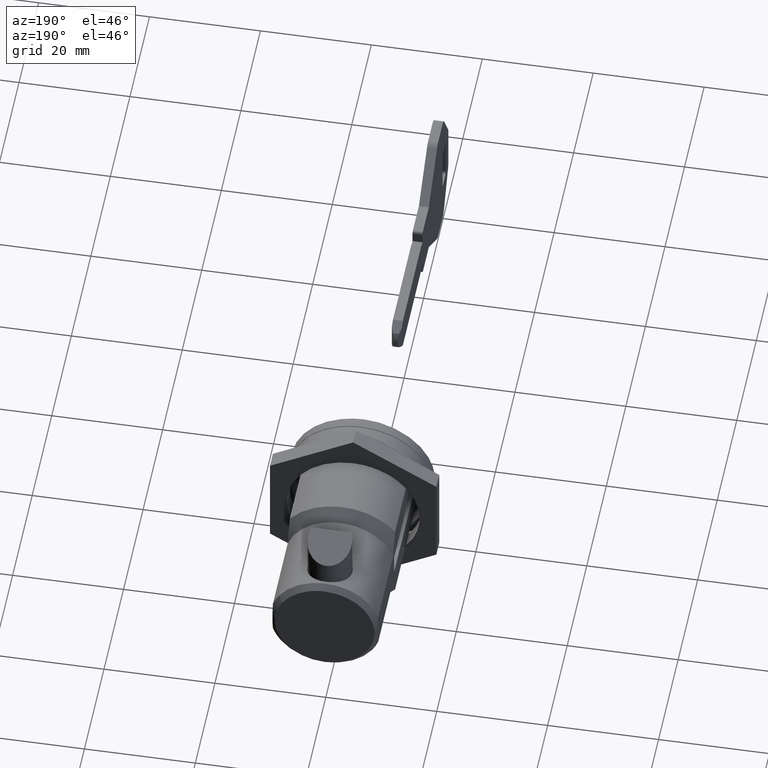
[diagram: clean part render]
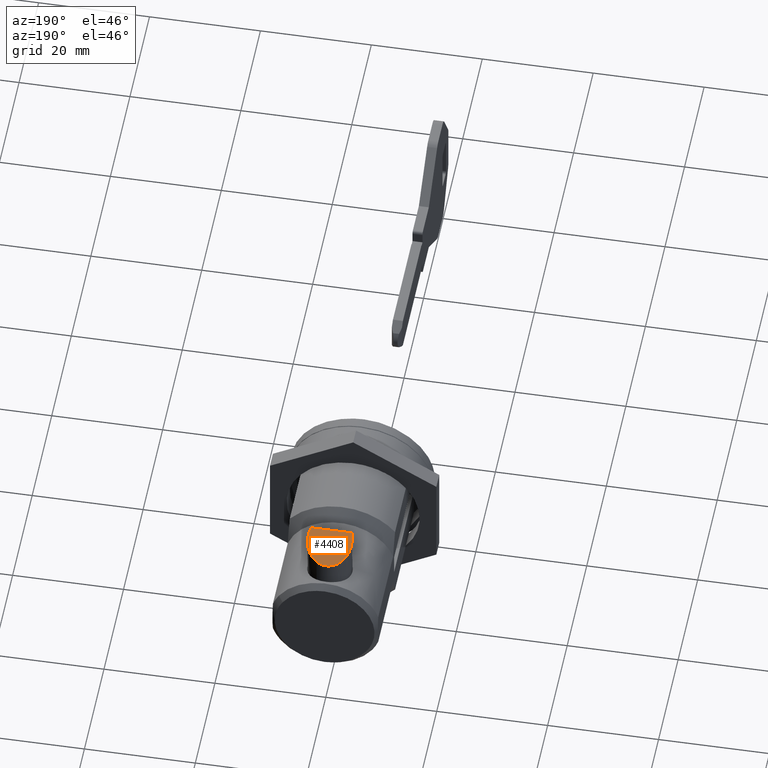
[diagram: same view with one face highlighted and labeled with its STEP entity id]
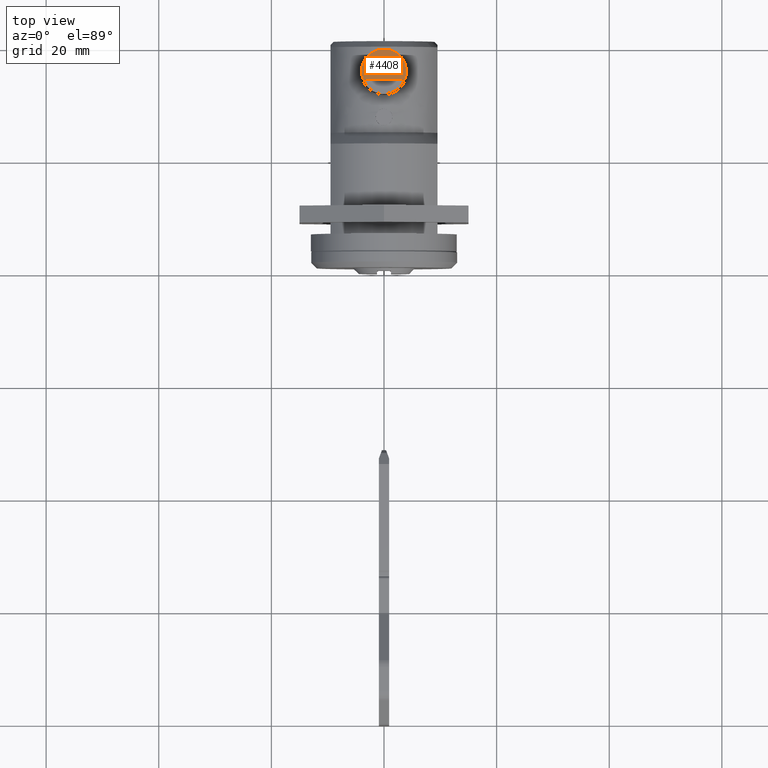
[diagram: same view with one face highlighted and labeled with its STEP entity id]
A machine part, auxiliary view. The second image highlights one B-rep face of the part: STEP entity #4408.
A second angle (top view) of the same face is appended — the face is thin or edge-on in the first view.
In plain terms, the highlighted face is a freeform B-spline surface patch.
Its self-contained STEP definition (entity closure, byte-faithful):
#4205=CARTESIAN_POINT('',(37.907752174561857,3.335540486293747,15.140533108043201));
#4206=VERTEX_POINT('',#4205);
#4207=CARTESIAN_POINT('',(39.268149884612072,-1.807845790143778,14.274813709670530));
#4208=VERTEX_POINT('',#4207);
#4209=CARTESIAN_POINT('',(37.907752174561864,3.335540486293747,15.140533108043206));
#4210=CARTESIAN_POINT('',(38.470675967350012,2.962949314194290,14.782307664633571));
#4211=CARTESIAN_POINT('',(38.880143181311503,2.426252101168893,14.521736184738330));
#4212=CARTESIAN_POINT('',(40.402453349021044,0.430928430525094,13.552988017035327));
#4213=CARTESIAN_POINT('',(39.268149884612065,-1.807845790143778,14.274813709670532));
#4221=(BOUNDED_CURVE()B_SPLINE_CURVE(2,(#4209,#4210,#4211,#4212,#4213),.UNSPECIFIED.,.F.,.U.)B_SPLINE_CURVE_WITH_KNOTS((3,2,3),(0.245592978949929,0.333333333333333,0.617819458953238),.UNSPECIFIED.)CURVE()GEOMETRIC_REPRESENTATION_ITEM()RATIONAL_B_SPLINE_CURVE((0.920499927323969,0.946048896962265,1.0,0.825070910825630,0.948731214675872))REPRESENTATION_ITEM(''));
#4222=EDGE_CURVE('',#4206,#4208,#4221,.T.);
#4295=CARTESIAN_POINT('',(34.200000000000003,-3.708099243546760,17.500000000000000));
#4296=VERTEX_POINT('',#4295);
#4297=CARTESIAN_POINT('',(39.268149884612065,-1.807845790143778,14.274813709670532));
#4298=CARTESIAN_POINT('',(39.102480207335240,-2.134828458232659,14.380239868059400));
#4299=CARTESIAN_POINT('',(38.880140032989303,-2.426254185071014,14.521729069915910));
#4300=CARTESIAN_POINT('',(37.029055077762180,-4.852508370143534,15.699692223242252));
#4301=CARTESIAN_POINT('',(34.200000000000003,-3.708099243546742,17.500000000000000));
#4309=(BOUNDED_CURVE()B_SPLINE_CURVE(2,(#4297,#4298,#4299,#4300,#4301),.UNSPECIFIED.,.F.,.U.)B_SPLINE_CURVE_WITH_KNOTS((3,2,3),(0.617819458953238,0.666666666666667,1.0),.UNSPECIFIED.)CURVE()GEOMETRIC_REPRESENTATION_ITEM()RATIONAL_B_SPLINE_CURVE((0.948731214675872,0.969964097421616,1.0,0.795035008247247,1.0))REPRESENTATION_ITEM(''));
#4310=EDGE_CURVE('',#4208,#4296,#4309,.T.);
#4336=CARTESIAN_POINT('',(34.200000000000003,3.708099243549755,17.500000000000000));
#4337=VERTEX_POINT('',#4336);
#4343=CARTESIAN_POINT('',(34.200000000000003,3.708099243549755,17.500000000000000));
#4344=CARTESIAN_POINT('',(36.151932207349219,4.497692500309968,16.257867293925827));
#4345=CARTESIAN_POINT('',(37.907752174561864,3.335540486293747,15.140533108043206));
#4353=(BOUNDED_CURVE()B_SPLINE_CURVE(2,(#4343,#4344,#4345),.UNSPECIFIED.,.F.,.U.)B_SPLINE_CURVE_WITH_KNOTS((3,3),(0.0,0.245592978949929),.UNSPECIFIED.)CURVE()GEOMETRIC_REPRESENTATION_ITEM()RATIONAL_B_SPLINE_CURVE((1.0,0.848986111284981,0.920499927323969))REPRESENTATION_ITEM(''));
#4354=EDGE_CURVE('',#4337,#4206,#4353,.T.);
#4393=CARTESIAN_POINT('',(33.925322718613067,-4.399599826680283,17.674794633609860));
#4394=CARTESIAN_POINT('',(39.973734225630530,-4.399599826680283,13.825805492780580));
#4395=CARTESIAN_POINT('',(33.925322718613067,4.399596185660523,17.674794633609860));
#4396=CARTESIAN_POINT('',(39.973734225630530,4.399596185660523,13.825805492780580));
#4397=B_SPLINE_SURFACE_WITH_KNOTS('',1,1,((#4393,#4395),(#4394,#4396)),.UNSPECIFIED.,.F.,.F.,.U.,(2,2),(2,2),(0.0,7.169239789855189),(0.0,8.799196012340806),.UNSPECIFIED.);
#4398=CARTESIAN_POINT('',(34.200000000000003,3.708099243549755,17.500000000000000));
#4399=CARTESIAN_POINT('',(34.200000000000003,-3.708099243546760,17.500000000000000));
#4400=QUASI_UNIFORM_CURVE('',1,(#4398,#4399),.UNSPECIFIED.,.F.,.U.);
#4401=EDGE_CURVE('',#4337,#4296,#4400,.T.);
#4402=ORIENTED_EDGE('',*,*,#4401,.T.);
#4403=ORIENTED_EDGE('',*,*,#4310,.F.);
#4404=ORIENTED_EDGE('',*,*,#4222,.F.);
#4405=ORIENTED_EDGE('',*,*,#4354,.F.);
#4406=EDGE_LOOP('',(#4402,#4403,#4404,#4405));
#4407=FACE_OUTER_BOUND('',#4406,.T.);
#4408=ADVANCED_FACE('',(#4407),#4397,.T.);